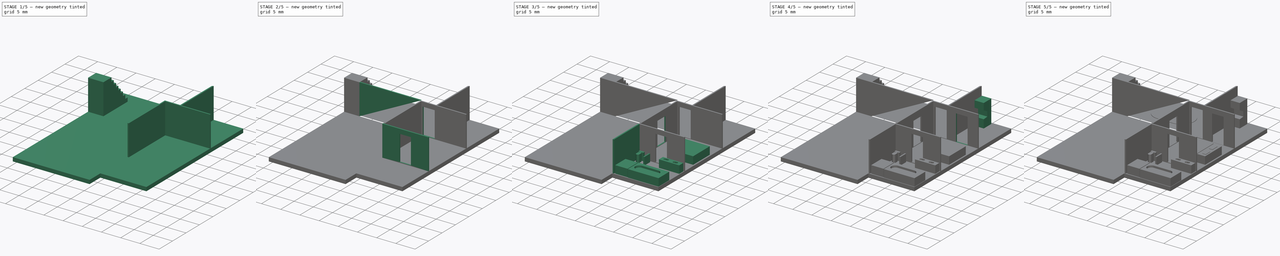
[diagram: build sequence overview — one tinted view per stage of 5, left to right]
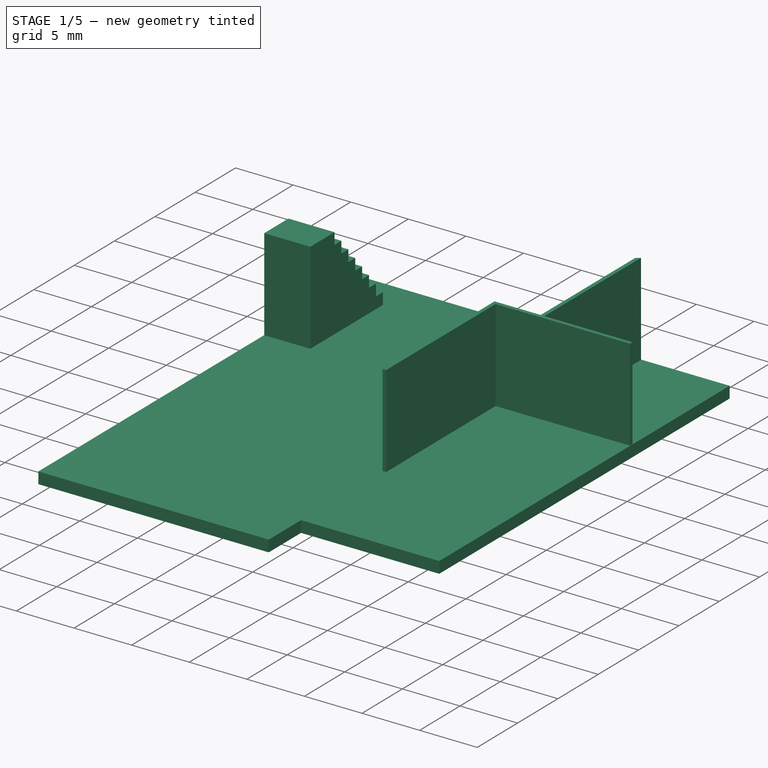
[diagram: stage 1 of 5 — iso view after this stage's code; geometry added in this stage tinted green]
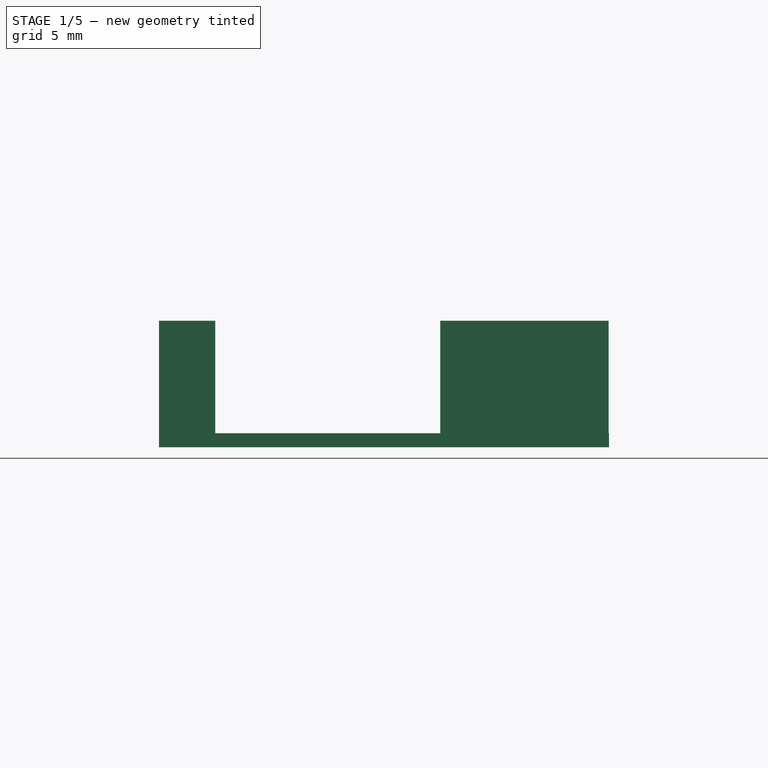
[diagram: stage 1 of 5 — front view after this stage's code; geometry added in this stage tinted green]
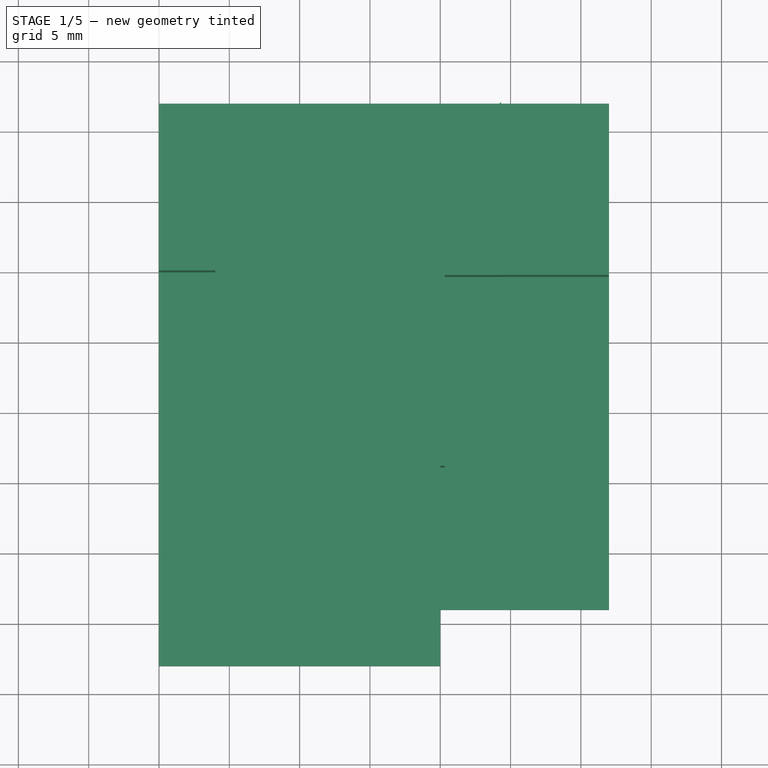
[diagram: stage 1 of 5 — top view after this stage's code; geometry added in this stage tinted green]
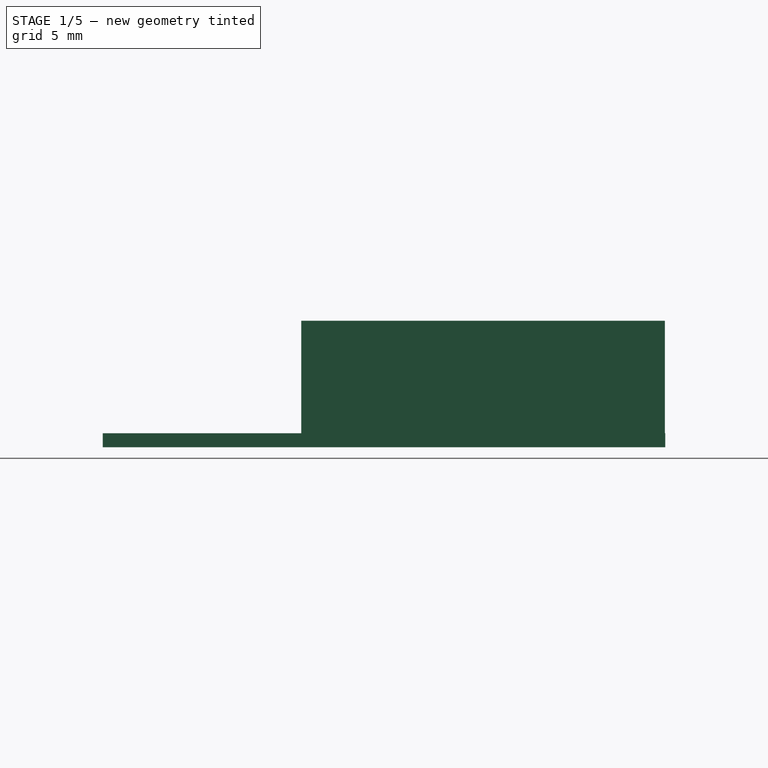
[diagram: stage 1 of 5 — right view after this stage's code; geometry added in this stage tinted green]
FCSTD DOCUMENT  (FreeCAD 0.19R)
Label: Addition1b
License: All rights reserved
LicenseURL: http://en.wikipedia.org/wiki/All_rights_reserved
objects: Sketcher::SketchObject×27, PartDesign::Pad×14, PartDesign::Pocket×7, PartDesign::Body×1
note: 70 computed .brp shape members not serialized (recipe doc carries the construction recipe); baked Part::Feature solids carry a one-line shape summary decoded from their .brp

FEATURE [Sketcher::SketchObject] Sketch
  FullyConstrained = true
  MapMode = 5
  Support = -> [XY_Plane]
  sketch-geometry (8):
    g0: LineSegment StartX=0 StartY=-28 StartZ=0 EndX=-20 EndY=-28 EndZ=0
    g1: LineSegment StartX=-20 StartY=-28 StartZ=0 EndX=-20 EndY=0 EndZ=0
    g2: LineSegment StartX=-20 StartY=0 StartZ=0 EndX=-16 EndY=0 EndZ=0
    g3: LineSegment StartX=-16 StartY=0 StartZ=0 EndX=-16 EndY=12 EndZ=0
    g4: LineSegment StartX=-16 StartY=12 StartZ=0 EndX=12 EndY=12 EndZ=0
    g5: LineSegment StartX=12 StartY=12 StartZ=0 EndX=12 EndY=-24 EndZ=0
    g6: LineSegment StartX=12 StartY=-24 StartZ=0 EndX=0 EndY=-24 EndZ=0
    g7: LineSegment StartX=0 StartY=-24 StartZ=0 EndX=0 EndY=-28 EndZ=0
  constraints (24):
    c: Coincident(g0,g1)
    c: Horizontal(g0)
    c: Vertical(g1)
    c: DistanceX(g1) = -20
    c: DistanceY(g0) = -28
    c: Coincident(g1,g2)
    c: PointOnObject(g2,g-1)
    c: Horizontal(g2)
    c: Coincident(g2,g3)
    c: Vertical(g3)
    c: Coincident(g3,g4)
    c: Horizontal(g4)
    c: Coincident(g4,g5)
    c: Vertical(g5)
    c: Coincident(g5,g6)
    c: PointOnObject(g6,g-2)
    c: Coincident(g6,g7)
    c: Coincident(g7,g0)
    c: Vertical(g7)
    c: Horizontal(g6)
    c: Distance(g6) = 12
    c: Distance(g3) = 12
    c: DistanceY(g6) = -24
    c: DistanceX(g2) = -16
FEATURE [PartDesign::Pad] Pad  label="foundation"
  Direction = (1,1,1)
  Length = 1
  Length2 = 100
  Profile = -> Sketch
  Type = 0
FEATURE [Sketcher::SketchObject] Sketch004
  FullyConstrained = true
  MapMode = 5
  Placement = pos=(-16,0,0) rot=(0.57735,-0.57735,-0.57735;2.0944rad)
  Support = -> [Pad]
  sketch-geometry (20):
    g0: LineSegment StartX=-12 StartY=0 StartZ=0 EndX=-12 EndY=1 EndZ=0
    g1: LineSegment StartX=-12 StartY=1 StartZ=0 EndX=-9 EndY=1 EndZ=0
    g2: LineSegment StartX=-9 StartY=1 StartZ=0 EndX=-9 EndY=2 EndZ=0
    g3: LineSegment StartX=-9 StartY=2 StartZ=0 EndX=-8.14286 EndY=2 EndZ=0
    g4: LineSegment StartX=-8.14286 StartY=2 StartZ=0 EndX=-8.14286 EndY=3 EndZ=0
    g5: LineSegment StartX=-8.14286 StartY=3 StartZ=0 EndX=-7.28571 EndY=3 EndZ=0
    g6: LineSegment StartX=-7.28571 StartY=3 StartZ=0 EndX=-7.28571 EndY=4 EndZ=0
    g7: LineSegment StartX=-7.28571 StartY=4 StartZ=0 EndX=-6.42857 EndY=4 EndZ=0
    g8: LineSegment StartX=-6.42857 StartY=4 StartZ=0 EndX=-6.42857 EndY=5 EndZ=0
    g9: LineSegment StartX=-6.42857 StartY=5 StartZ=0 EndX=-5.57143 EndY=5 EndZ=0
    g10: LineSegment StartX=-5.57143 StartY=5 StartZ=0 EndX=-5.57143 EndY=6 EndZ=0
    g11: LineSegment StartX=-5.57143 StartY=6 StartZ=0 EndX=-4.71429 EndY=6 EndZ=0
    g12: LineSegment StartX=-4.71429 StartY=6 StartZ=0 EndX=-4.71429 EndY=7 EndZ=0
    g13: LineSegment StartX=-4.71429 StartY=7 StartZ=0 EndX=-3.85714 EndY=7 EndZ=0
    g14: LineSegment StartX=-3.85714 StartY=7 StartZ=0 EndX=-3.85714 EndY=8 EndZ=0
    g15: LineSegment StartX=-3.85714 StartY=8 StartZ=0 EndX=-3 EndY=8 EndZ=0
    g16: LineSegment StartX=-3 StartY=8 StartZ=0 EndX=-3 EndY=9 EndZ=0
    g17: LineSegment StartX=-3 StartY=9 StartZ=0 EndX=0 EndY=9 EndZ=0
    g18: LineSegment StartX=0 StartY=9 StartZ=0 EndX=0 EndY=0 EndZ=0
    g19: LineSegment StartX=0 StartY=0 StartZ=0 EndX=-12 EndY=0 EndZ=0
  constraints (59):
    c: PointOnObject(g0,g-1)
    c: Coincident(g0,g1)
    c: Coincident(g1,g2)
    c: Coincident(g2,g3)
    c: Coincident(g3,g4)
    c: Vertical(g4)
    c: Coincident(g4,g5)
    c: Horizontal(g5)
    c: Coincident(g5,g6)
    c: Coincident(g6,g7)
    c: Coincident(g7,g8)
    c: Coincident(g8,g9)
    c: Coincident(g9,g10)
    c: Coincident(g10,g11)
    c: Horizontal(g11)
    c: Coincident(g11,g12)
    c: Coincident(g12,g13)
    c: Coincident(g13,g14)
    c: Coincident(g14,g15)
    c: Coincident(g15,g16)
    c: Coincident(g16,g17)
    c: PointOnObject(g17,g-2)
    c: Coincident(g17,g18)
    c: Coincident(g18,g-1)
    c: Coincident(g18,g19)
    c: Coincident(g19,g0)
    c: DistanceY(g17) = 9
    c: Horizontal(g3)
    c: Horizontal(g7)
    c: Horizontal(g9)
    c: Horizontal(g13)
    c: Horizontal(g15)
    c: Vertical(g6)
    c: Vertical(g8)
    c: Vertical(g12)
    c: Vertical(g10)
    c: Vertical(g14)
    c: Vertical(g16)
    c: Vertical(g2)
    c: Equal(g2,g4)
    c: Equal(g4,g6)
    c: Equal(g6,g8)
    c: Equal(g8,g10)
    c: Equal(g10,g12)
    c: Equal(g12,g14)
    c: Equal(g14,g16)
    c: Distance(g17) = 3
    c: Equal(g3,g5)
    c: Equal(g5,g7)
    c: Equal(g7,g9)
    c: Equal(g9,g11)
    c: Equal(g11,g13)
    c: Equal(g13,g15)
    c: Horizontal(g1)
    c: Horizontal(g17)
    c: Distance(g1) = 3
    c: Vertical(g0)
    c: Distance(g0) = 1
    c: DistanceX(g0) = -12
FEATURE [Sketcher::SketchObject] Sketch007
  FullyConstrained = false
  MapMode = 5
  Placement = pos=(0,0,1) rot=(0,0,1;0rad)
  sketch-geometry (8):
    g0: LineSegment StartX=0.316723 StartY=-0.33 StartZ=0 EndX=0.316723 EndY=-13.8883 EndZ=0
    g1: LineSegment StartX=0.316723 StartY=-13.8883 StartZ=0 EndX=0 EndY=-13.8883 EndZ=0
    g2: LineSegment StartX=0 StartY=-13.8883 StartZ=0 EndX=0 EndY=0 EndZ=0
    g3: LineSegment StartX=0.316723 StartY=-0.33 StartZ=0 EndX=4.33 EndY=-0.33 EndZ=0
    g4: LineSegment StartX=4.33 StartY=-0.33 StartZ=0 EndX=4.33 EndY=11.9692 EndZ=0
    g5: LineSegment StartX=4.33 StartY=11.9692 StartZ=0 EndX=4 EndY=11.7324 EndZ=0
    g6: LineSegment StartX=4 StartY=11.7324 StartZ=0 EndX=4 EndY=0 EndZ=0
    g7: LineSegment StartX=4 StartY=0 StartZ=0 EndX=0 EndY=0 EndZ=0
  constraints (19):
    c: Coincident(g0,g1)
    c: Coincident(g1,g2)
    c: Horizontal(g1)
    c: Vertical(g0)
    c: Vertical(g2)
    c: Coincident(g0,g3)
    c: Horizontal(g3)
    c: Coincident(g3,g4)
    c: Vertical(g4)
    c: Coincident(g4,g5)
    c: Coincident(g5,g6)
    c: Vertical(g6)
    c: Coincident(g6,g7)
    c: Coincident(g7,g2)
    c: Horizontal(g7)
    c: Distance(g0,g7) = 0.33
    c: Coincident(g-1,g2)
    c: Distance(g7) = 4
    c: DistanceX(g6,g3) = 0.33
FEATURE [PartDesign::Pad] Pad004  label="wall"
  BaseFeature = -> Pad
  Direction = (1,1,1)
  Length = 8
  Length2 = 100
  Profile = -> Sketch007
  Type = 0
FEATURE [Sketcher::SketchObject] Sketch012
  FullyConstrained = true
  MapMode = 5
  Placement = pos=(0,0,0) rot=(1,0,0;3.14159rad)
FEATURE [Sketcher::SketchObject] Sketch013
  FullyConstrained = true
  MapMode = 5
  Placement = pos=(0,0,0) rot=(1,0,0;3.14159rad)
FEATURE [PartDesign::Pad] Pad005  label="stairs001"
  BaseFeature = -> Pad004
  Direction = (1,1,1)
  Length = 4
  Length2 = 100
  Profile = -> Sketch004
  Type = 0
FEATURE [Sketcher::SketchObject] Sketch014
  FullyConstrained = false
  MapMode = 5
  Placement = pos=(0,0,1) rot=(0,0,1;0rad)
  Support = -> [Pad005]
  sketch-geometry (4):
    g0: LineSegment StartX=4.2418 StartY=0 StartZ=0 EndX=4.2418 EndY=-0.31886 EndZ=0
    g1: LineSegment StartX=4.2418 StartY=-0.31886 StartZ=0 EndX=11.971 EndY=-0.31886 EndZ=0
    g2: LineSegment StartX=11.971 StartY=-0.31886 StartZ=0 EndX=11.971 EndY=0 EndZ=0
    g3: LineSegment StartX=11.971 StartY=0 StartZ=0 EndX=4.2418 EndY=0 EndZ=0
  constraints (9):
    c: PointOnObject(g0,g-1)
    c: Coincident(g0,g1)
    c: Horizontal(g1)
    c: Coincident(g1,g2)
    c: PointOnObject(g2,g-1)
    c: Coincident(g2,g3)
    c: Coincident(g3,g0)
    c: Vertical(g0)
    c: Vertical(g2)
FEATURE [PartDesign::Pad] Pad006  label="closetwall"
  BaseFeature = -> Pad005
  Direction = (1,1,1)
  Length = 8
  Length2 = 100
  Profile = -> Sketch014
  Type = 0
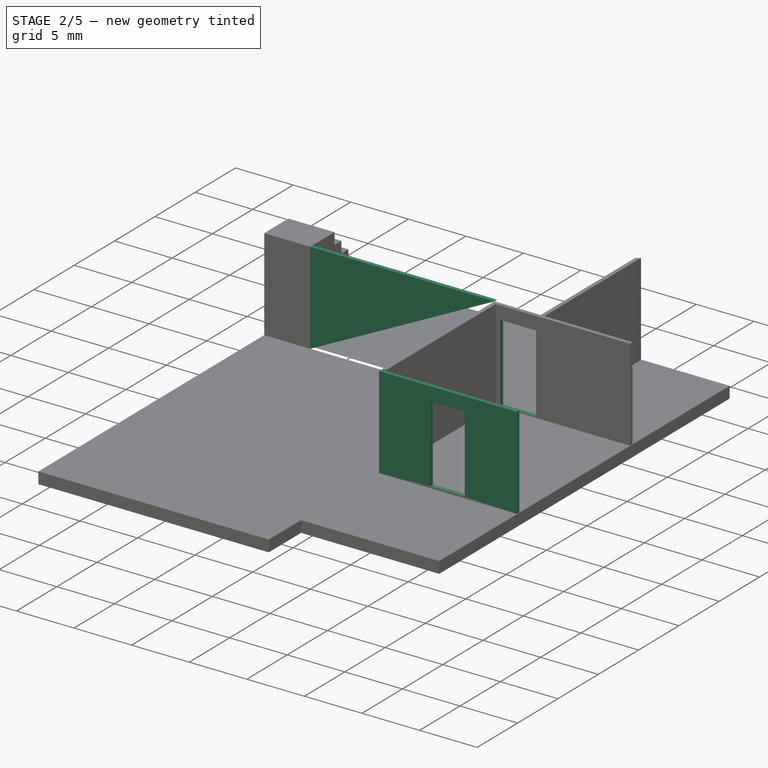
[diagram: stage 2 of 5 — iso view after this stage's code; geometry added in this stage tinted green]
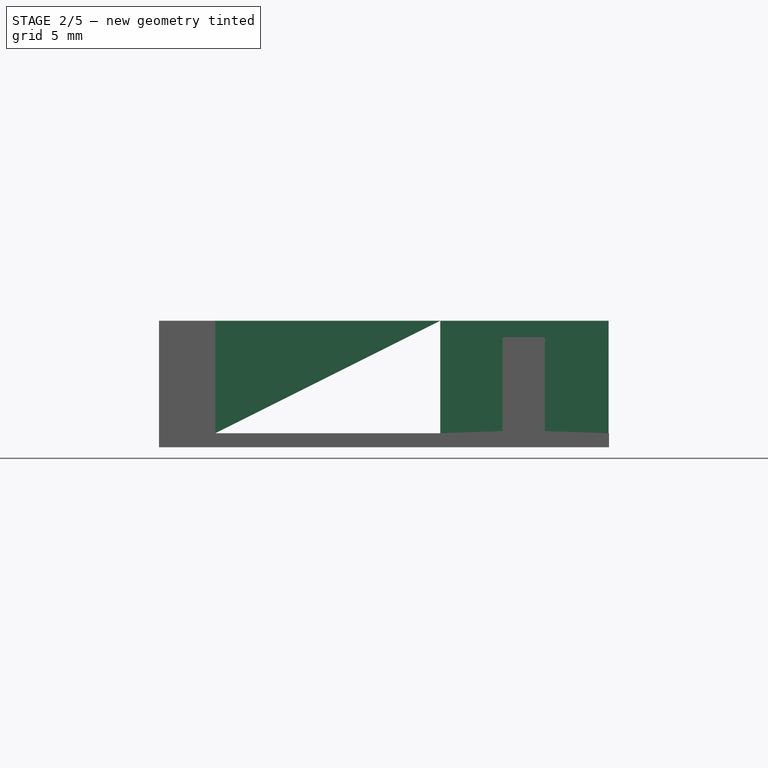
[diagram: stage 2 of 5 — front view after this stage's code; geometry added in this stage tinted green]
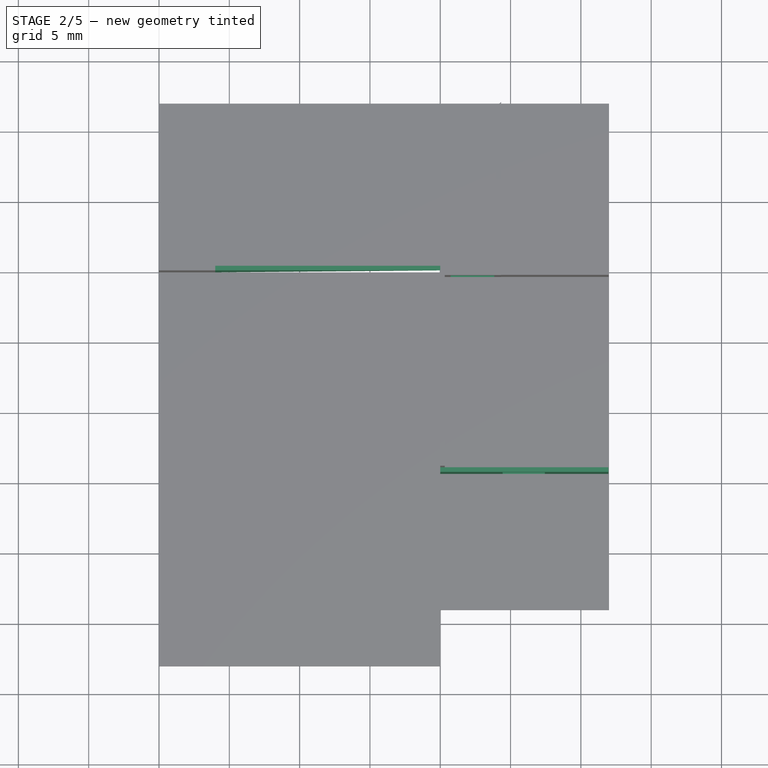
[diagram: stage 2 of 5 — top view after this stage's code; geometry added in this stage tinted green]
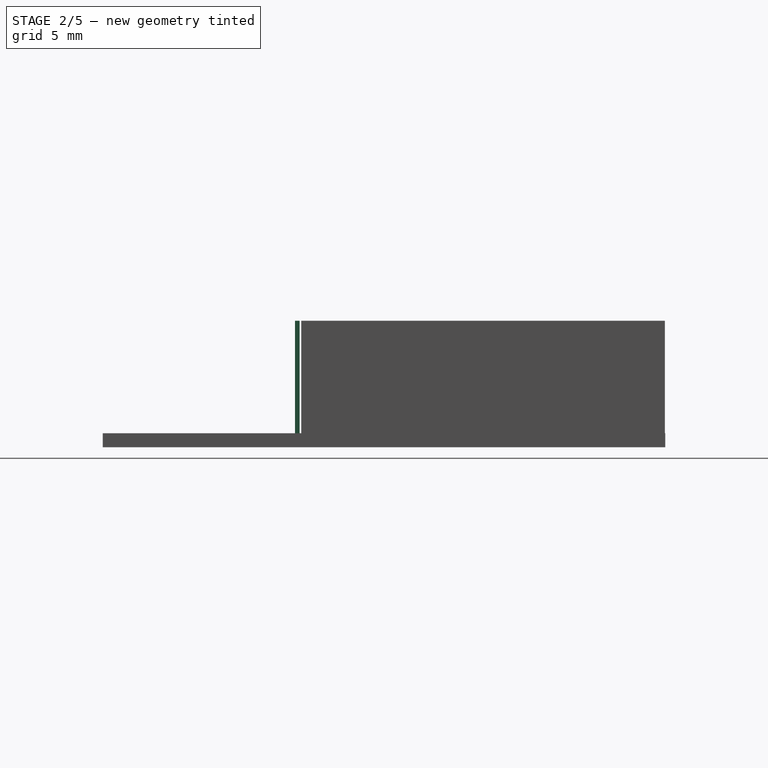
[diagram: stage 2 of 5 — right view after this stage's code; geometry added in this stage tinted green]
FEATURE [Sketcher::SketchObject] Sketch015
  FullyConstrained = false
  MapMode = 5
  Placement = pos=(0,0,1) rot=(0,0,1;0rad)
  Support = -> [Pad006]
  sketch-geometry (4):
    g0: LineSegment StartX=0 StartY=-14 StartZ=0 EndX=11.9531 EndY=-14 EndZ=0
    g1: LineSegment StartX=11.9531 StartY=-14 StartZ=0 EndX=11.9531 EndY=-14.33 EndZ=0
    g2: LineSegment StartX=11.9531 StartY=-14.33 StartZ=0 EndX=0 EndY=-14.33 EndZ=0
    g3: LineSegment StartX=0 StartY=-14.33 StartZ=0 EndX=0 EndY=-14 EndZ=0
  constraints (11):
    c: Coincident(g0,g1)
    c: Coincident(g1,g2)
    c: Coincident(g2,g3)
    c: Coincident(g3,g0)
    c: Horizontal(g0)
    c: Horizontal(g2)
    c: Vertical(g1)
    c: Vertical(g3)
    c: PointOnObject(g0,g-2)
    c: DistanceY(g0) = -14
    c: Distance(g1) = 0.33
FEATURE [PartDesign::Pad] Pad007  label="BRwall"
  BaseFeature = -> Pad006
  Direction = (1,1,1)
  Length = 8
  Length2 = 100
  Profile = -> Sketch015
  Type = 0
FEATURE [Sketcher::SketchObject] Sketch016
  FullyConstrained = false
  MapMode = 5
  Placement = pos=(0,-14.33,0) rot=(1,0,0;1.5708rad)
  Support = -> [Pad007]
  sketch-geometry (4):
    g0: LineSegment StartX=4.4393 StartY=7.82713 StartZ=0 EndX=7.4393 EndY=7.82713 EndZ=0
    g1: LineSegment StartX=7.4393 StartY=7.82713 StartZ=0 EndX=7.4393 EndY=1.1546 EndZ=0
    g2: LineSegment StartX=7.4393 StartY=1.1546 StartZ=0 EndX=4.4393 EndY=1.1546 EndZ=0
    g3: LineSegment StartX=4.4393 StartY=1.1546 StartZ=0 EndX=4.4393 EndY=7.82713 EndZ=0
  constraints (9):
    c: Coincident(g0,g1)
    c: Coincident(g1,g2)
    c: Coincident(g2,g3)
    c: Coincident(g3,g0)
    c: Horizontal(g0)
    c: Horizontal(g2)
    c: Vertical(g1)
    c: Vertical(g3)
    c: Distance(g0) = 3
FEATURE [PartDesign::Pocket] Pocket  label="BathDoor"
  BaseFeature = -> Pad007
  Length = 5
  Length2 = 100
  Profile = -> Sketch016
  Type = 0
FEATURE [Sketcher::SketchObject] Sketch017
  FullyConstrained = false
  MapMode = 5
  Placement = pos=(0,-0.33,0) rot=(1,0,0;1.5708rad)
  Support = -> [Pocket]
  sketch-geometry (4):
    g0: LineSegment StartX=0.733771 StartY=7.85932 StartZ=0 EndX=3.83597 EndY=7.85932 EndZ=0
    g1: LineSegment StartX=3.83597 StartY=7.85932 StartZ=0 EndX=3.83597 EndY=1.10284 EndZ=0
    g2: LineSegment StartX=3.83597 StartY=1.10284 StartZ=0 EndX=0.733771 EndY=1.10284 EndZ=0
    g3: LineSegment StartX=0.733771 StartY=1.10284 StartZ=0 EndX=0.733771 EndY=7.85932 EndZ=0
  constraints (8):
    c: Coincident(g0,g1)
    c: Coincident(g1,g2)
    c: Coincident(g2,g3)
    c: Coincident(g3,g0)
    c: Horizontal(g0)
    c: Horizontal(g2)
    c: Vertical(g1)
    c: Vertical(g3)
FEATURE [PartDesign::Pocket] Pocket001  label="KitDoor"
  BaseFeature = -> Pocket
  Length = 5
  Length2 = 100
  Profile = -> Sketch017
  Type = 0
FEATURE [Sketcher::SketchObject] Sketch018
  FullyConstrained = false
  MapMode = 5
  Placement = pos=(0,0,1) rot=(0,0,1;0rad)
  Support = -> [Pocket001]
  sketch-geometry (4):
    g0: LineSegment StartX=0 StartY=0 StartZ=0 EndX=-15.9993 EndY=0 EndZ=0
    g1: LineSegment StartX=-15.9993 StartY=0 StartZ=0 EndX=-15.9993 EndY=0.33 EndZ=0
    g2: LineSegment StartX=-15.9993 StartY=0.33 StartZ=0 EndX=0 EndY=0.33 EndZ=0
    g3: LineSegment StartX=0 StartY=0.33 StartZ=0 EndX=0 EndY=0 EndZ=0
  constraints (10):
    c: Coincident(g-1,g0)
    c: PointOnObject(g0,g-1)
    c: Coincident(g0,g1)
    c: Coincident(g1,g2)
    c: Horizontal(g2)
    c: Coincident(g2,g3)
    c: Coincident(g3,g0)
    c: Vertical(g3)
    c: Distance(g3) = 0.33
    c: Vertical(g1)
FEATURE [PartDesign::Pad] Pad008  label="HouseWall"
  BaseFeature = -> Pocket001
  Direction = (1,1,1)
  Length = 8
  Length2 = 100
  Profile = -> Sketch018
  Type = 0
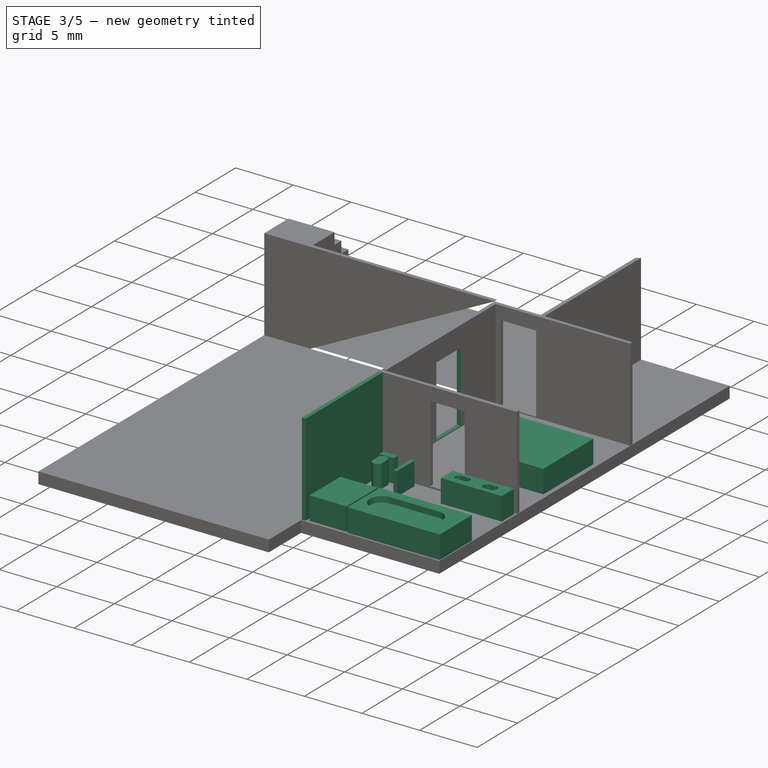
[diagram: stage 3 of 5 — iso view after this stage's code; geometry added in this stage tinted green]
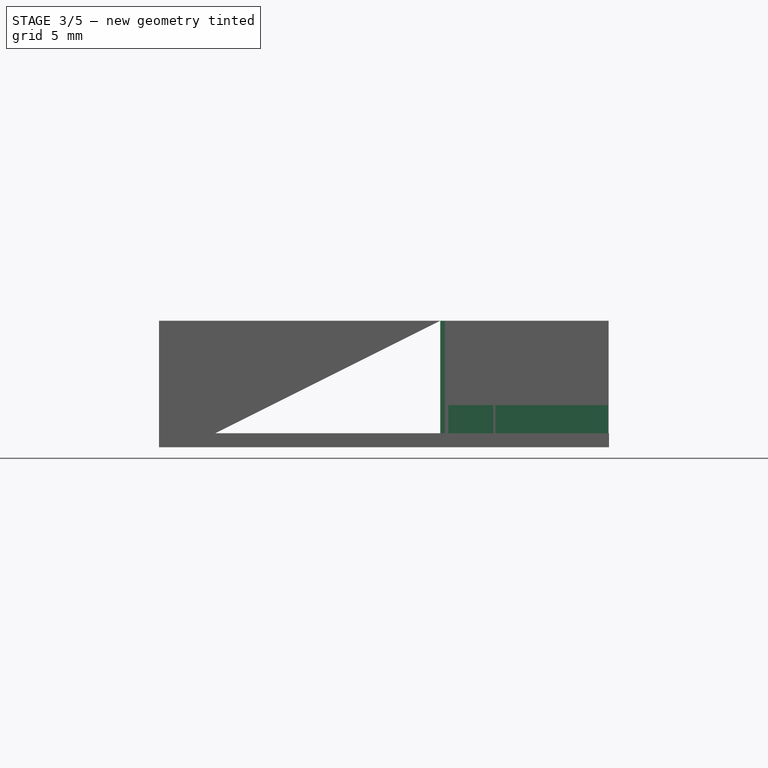
[diagram: stage 3 of 5 — front view after this stage's code; geometry added in this stage tinted green]
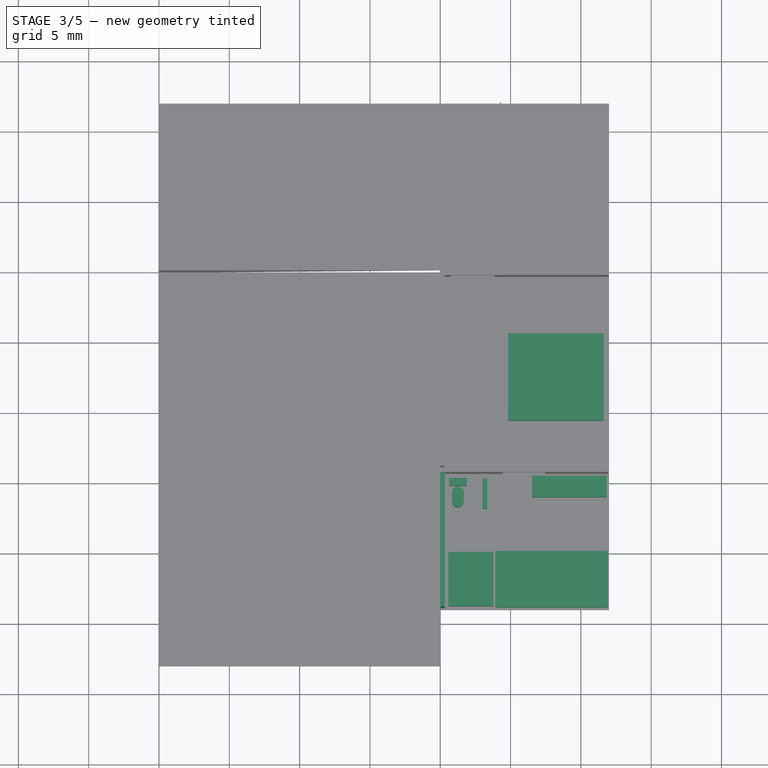
[diagram: stage 3 of 5 — top view after this stage's code; geometry added in this stage tinted green]
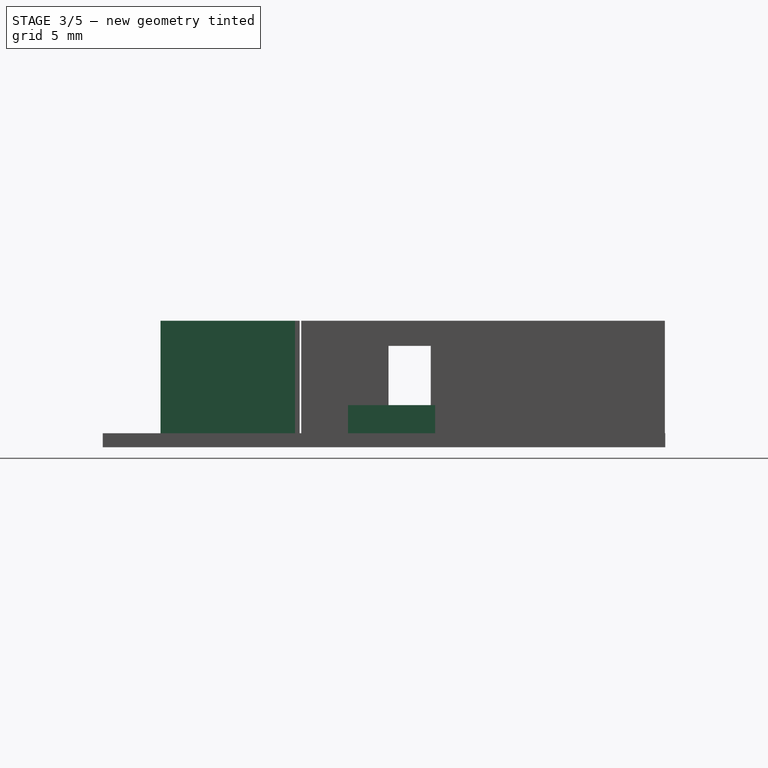
[diagram: stage 3 of 5 — right view after this stage's code; geometry added in this stage tinted green]
FEATURE [Sketcher::SketchObject] Sketch019
  FullyConstrained = false
  MapMode = 5
  Placement = pos=(0,0,0) rot=(1,0,0;1.5708rad)
  Support = -> [Pad008]
  sketch-geometry (4):
    g0: LineSegment StartX=-9.86493 StartY=6.37394 StartZ=0 EndX=-6.46122 EndY=6.37394 EndZ=0
    g1: LineSegment StartX=-6.46122 StartY=6.37394 StartZ=0 EndX=-6.46122 EndY=1.07571 EndZ=0
    g2: LineSegment StartX=-6.46122 StartY=1.07571 StartZ=0 EndX=-9.86493 EndY=1.07571 EndZ=0
    g3: LineSegment StartX=-9.86493 StartY=1.07571 StartZ=0 EndX=-9.86493 EndY=6.37394 EndZ=0
  constraints (8):
    c: Coincident(g0,g1)
    c: Coincident(g1,g2)
    c: Coincident(g2,g3)
    c: Coincident(g3,g0)
    c: Horizontal(g0)
    c: Horizontal(g2)
    c: Vertical(g1)
    c: Vertical(g3)
FEATURE [Sketcher::SketchObject] Sketch020
  FullyConstrained = false
  MapMode = 5
  Placement = pos=(0,0,0) rot=(0.57735,-0.57735,-0.57735;2.0944rad)
  Support = -> [Pad008]
  sketch-geometry (4):
    g0: LineSegment StartX=4.67696 StartY=7.21448 StartZ=0 EndX=7.67696 EndY=7.21448 EndZ=0
    g1: LineSegment StartX=7.67696 StartY=7.21448 StartZ=0 EndX=7.67696 EndY=1.11349 EndZ=0
    g2: LineSegment StartX=7.67696 StartY=1.11349 StartZ=0 EndX=4.67696 EndY=1.11349 EndZ=0
    g3: LineSegment StartX=4.67696 StartY=1.11349 StartZ=0 EndX=4.67696 EndY=7.21448 EndZ=0
  constraints (9):
    c: Coincident(g0,g1)
    c: Coincident(g1,g2)
    c: Coincident(g2,g3)
    c: Coincident(g3,g0)
    c: Horizontal(g0)
    c: Horizontal(g2)
    c: Vertical(g1)
    c: Vertical(g3)
    c: Distance(g0) = 3
FEATURE [PartDesign::Pocket] Pocket002
  BaseFeature = -> Pad008
  Length = 5
  Length2 = 100
  Profile = -> Sketch020
  Type = 0
FEATURE [Sketcher::SketchObject] Sketch021
  FullyConstrained = false
  MapMode = 5
  Placement = pos=(0,0,1) rot=(0,0,1;0rad)
  Support = -> [Pocket002]
  sketch-geometry (4):
    g0: LineSegment StartX=0 StartY=-14.2635 StartZ=0 EndX=0 EndY=-23.8941 EndZ=0
    g1: LineSegment StartX=0 StartY=-23.8941 StartZ=0 EndX=0.33 EndY=-23.8726 EndZ=0
    g2: LineSegment StartX=0.33 StartY=-23.8726 StartZ=0 EndX=0.33 EndY=-14.2635 EndZ=0
    g3: LineSegment StartX=0.33 StartY=-14.2635 StartZ=0 EndX=0 EndY=-14.2635 EndZ=0
  constraints (9):
    c: PointOnObject(g0,g-2)
    c: PointOnObject(g0,g-2)
    c: Coincident(g0,g1)
    c: Coincident(g1,g2)
    c: Vertical(g2)
    c: Coincident(g2,g3)
    c: Coincident(g3,g0)
    c: Horizontal(g3)
    c: Distance(g3) = 0.33
FEATURE [PartDesign::Pad] Pad009  label="BRleftwall"
  BaseFeature = -> Pocket002
  Direction = (1,1,1)
  Length = 8
  Length2 = 100
  Profile = -> Sketch021
  Type = 0
FEATURE [Sketcher::SketchObject] Sketch005
  FullyConstrained = false
  MapMode = 5
  Placement = pos=(0,0,1) rot=(0,0,1;0rad)
  Support = -> [Pad009]
  sketch-geometry (24):
    g0: LineSegment StartX=6.53413 StartY=-14.5109 StartZ=0 EndX=11.8296 EndY=-14.5109 EndZ=0
    g1: LineSegment StartX=11.8296 StartY=-14.5109 StartZ=0 EndX=11.8296 EndY=-16.0109 EndZ=0
    g2: LineSegment StartX=11.8296 StartY=-16.0109 StartZ=0 EndX=6.53413 EndY=-16.0109 EndZ=0
    g3: LineSegment StartX=6.53413 StartY=-16.0109 StartZ=0 EndX=6.53413 EndY=-14.5109 EndZ=0
    g4: LineSegment StartX=3.92264 StartY=-19.8444 StartZ=0 EndX=11.9226 EndY=-19.8444 EndZ=0
    g5: LineSegment StartX=11.9226 StartY=-19.8444 StartZ=0 EndX=11.9226 EndY=-23.8444 EndZ=0
    g6: LineSegment StartX=11.9226 StartY=-23.8444 StartZ=0 EndX=3.92264 EndY=-23.8444 EndZ=0
    g7: LineSegment StartX=3.92264 StartY=-23.8444 StartZ=0 EndX=3.92264 EndY=-19.8444 EndZ=0
    g8: LineSegment StartX=0.566351 StartY=-19.9158 StartZ=0 EndX=3.77896 EndY=-19.9158 EndZ=0
    g9: LineSegment StartX=3.77896 StartY=-19.9158 StartZ=0 EndX=3.77896 EndY=-23.7541 EndZ=0
    g10: LineSegment StartX=3.77896 StartY=-23.7541 StartZ=0 EndX=0.566351 EndY=-23.7541 EndZ=0
    g11: LineSegment StartX=0.566351 StartY=-23.7541 StartZ=0 EndX=0.566351 EndY=-19.9158 EndZ=0
    g12: ArcOfCircle CenterX=1.25513 CenterY=-15.6831 CenterZ=0 NormalX=0 NormalY=0 NormalZ=1 AngleXU=0 Radius=0.420638 StartAngle=0 EndAngle=3.14159
    g13: ArcOfCircle CenterX=1.25513 CenterY=-16.3141 CenterZ=0 NormalX=0 NormalY=0 NormalZ=1 AngleXU=0 Radius=0.420638 StartAngle=3.14159 EndAngle=6.28319
    g14: LineSegment StartX=0.834494 StartY=-15.6831 StartZ=0 EndX=0.834494 EndY=-16.3141 EndZ=0
    g15: LineSegment StartX=1.67577 StartY=-15.6831 StartZ=0 EndX=1.67577 EndY=-16.3141 EndZ=0
    g16: LineSegment StartX=0.621589 StartY=-14.6605 StartZ=0 EndX=1.88875 EndY=-14.6605 EndZ=0
    g17: LineSegment StartX=1.88875 StartY=-14.6605 StartZ=0 EndX=1.88875 EndY=-15.2011 EndZ=0
    g18: LineSegment StartX=1.88875 StartY=-15.2011 StartZ=0 EndX=0.621589 EndY=-15.2011 EndZ=0
    g19: LineSegment StartX=0.621589 StartY=-15.2011 StartZ=0 EndX=0.621589 EndY=-14.6605 EndZ=0
    g20: LineSegment StartX=3.33 StartY=-14.7023 StartZ=0 EndX=3.33 EndY=-16.8223 EndZ=0
    g21: LineSegment StartX=3.33 StartY=-16.8223 StartZ=0 EndX=3 EndY=-16.8223 EndZ=0
    g22: LineSegment StartX=3 StartY=-16.8223 StartZ=0 EndX=3 EndY=-14.7023 EndZ=0
    g23: LineSegment StartX=3 StartY=-14.7023 StartZ=0 EndX=3.33 EndY=-14.7023 EndZ=0
  constraints (49):
    c: Coincident(g0,g1)
    c: Coincident(g1,g2)
    c: Coincident(g2,g3)
    c: Coincident(g3,g0)
    c: Horizontal(g0)
    c: Horizontal(g2)
    c: Vertical(g1)
    c: Vertical(g3)
    c: Coincident(g4,g5)
    c: Coincident(g5,g6)
    c: Coincident(g6,g7)
    c: Coincident(g7,g4)
    c: Horizontal(g4)
    c: Horizontal(g6)
    c: Vertical(g5)
    c: Vertical(g7)
    c: Coincident(g8,g9)
    c: Coincident(g9,g10)
    c: Coincident(g10,g11)
    c: Coincident(g11,g8)
    c: Horizontal(g8)
    c: Horizontal(g10)
    c: Vertical(g9)
    c: Vertical(g11)
    c: Tangent(g12,g15) = 1.5708
    c: Tangent(g12,g14) = -1.5708
    c: Tangent(g14,g13) = -1.5708
    c: Tangent(g15,g13) = 1.5708
    c: Vertical(g14)
    c: Equal(g12,g13)
    c: Coincident(g16,g17)
    c: Coincident(g17,g18)
    c: Coincident(g18,g19)
    c: Coincident(g19,g16)
    c: Horizontal(g16)
    c: Horizontal(g18)
    c: Vertical(g17)
    c: Vertical(g19)
    c: Distance(g4) = 8
    c: Distance(g5) = 4
    c: Distance(g1) = 1.5
    c: Vertical(g20)
    c: Coincident(g20,g21)
    c: Coincident(g21,g22)
    c: Vertical(g22)
    c: Distance(g21) = 0.33
    c: Horizontal(g21)
    c: Coincident(g23,g22)
    c: Coincident(g23,g20)
FEATURE [Sketcher::SketchObject] Sketch022
  FullyConstrained = true
  MapMode = 5
  Placement = pos=(0,0,3) rot=(0,0,1;0rad)
FEATURE [Sketcher::SketchObject] Sketch023
  FullyConstrained = true
  MapMode = 5
  Placement = pos=(0,0,0) rot=(1,0,0;3.14159rad)
FEATURE [PartDesign::Pad] Pad010  label="Bathfixtures"
  BaseFeature = -> Pad009
  Direction = (1,1,1)
  Length = 2
  Length2 = 100
  Profile = -> Sketch005
  Type = 0
FEATURE [Sketcher::SketchObject] Sketch010
  FullyConstrained = false
  MapMode = 5
  Placement = pos=(0,0,3) rot=(0,0,1;0rad)
  Support = -> [Pad010]
  sketch-geometry (12):
    g0: ArcOfCircle CenterX=5.45251 CenterY=-21.7611 CenterZ=0 NormalX=0 NormalY=0 NormalZ=1 AngleXU=0 Radius=1.05172 StartAngle=1.5708 EndAngle=4.71239
    g1: ArcOfCircle CenterX=9.65426 CenterY=-21.7611 CenterZ=0 NormalX=0 NormalY=0 NormalZ=1 AngleXU=0 Radius=1.05172 StartAngle=4.71239 EndAngle=7.85398
    g2: LineSegment StartX=5.45251 StartY=-22.8129 StartZ=0 EndX=9.65426 EndY=-22.8129 EndZ=0
    g3: LineSegment StartX=5.45251 StartY=-20.7094 StartZ=0 EndX=9.65426 EndY=-20.7094 EndZ=0
    g4: ArcOfCircle CenterX=7.50758 CenterY=-15.1615 CenterZ=0 NormalX=0 NormalY=0 NormalZ=1 AngleXU=0 Radius=0.308323 StartAngle=1.5708 EndAngle=4.71239
    g5: ArcOfCircle CenterX=8.17393 CenterY=-15.1615 CenterZ=0 NormalX=0 NormalY=0 NormalZ=1 AngleXU=0 Radius=0.308323 StartAngle=4.71239 EndAngle=7.85398
    g6: LineSegment StartX=7.50758 StartY=-15.4699 StartZ=0 EndX=8.17393 EndY=-15.4699 EndZ=0
    g7: LineSegment StartX=7.50758 StartY=-14.8532 StartZ=0 EndX=8.17393 EndY=-14.8532 EndZ=0
    g8: ArcOfCircle CenterX=10.0443 CenterY=-15.2584 CenterZ=0 NormalX=0 NormalY=0 NormalZ=1 AngleXU=0 Radius=0.355005 StartAngle=1.5708 EndAngle=4.71239
    g9: ArcOfCircle CenterX=10.553 CenterY=-15.2584 CenterZ=0 NormalX=0 NormalY=0 NormalZ=1 AngleXU=0 Radius=0.355005 StartAngle=4.71239 EndAngle=7.85398
    g10: LineSegment StartX=10.0443 StartY=-15.6134 StartZ=0 EndX=10.553 EndY=-15.6134 EndZ=0
    g11: LineSegment StartX=10.0443 StartY=-14.9034 StartZ=0 EndX=10.553 EndY=-14.9034 EndZ=0
  constraints (18):
    c: Tangent(g0,g3) = 1.5708
    c: Tangent(g0,g2) = -1.5708
    c: Tangent(g2,g1) = -1.5708
    c: Tangent(g3,g1) = 1.5708
    c: Horizontal(g2)
    c: Equal(g0,g1)
    c: Tangent(g4,g7) = 1.5708
    c: Tangent(g4,g6) = -1.5708
    c: Tangent(g6,g5) = -1.5708
    c: Tangent(g7,g5) = 1.5708
    c: Horizontal(g6)
    c: Equal(g4,g5)
    c: Tangent(g8,g11) = 1.5708
    c: Tangent(g8,g10) = -1.5708
    c: Tangent(g10,g9) = -1.5708
    c: Tangent(g11,g9) = 1.5708
    c: Horizontal(g10)
    c: Equal(g8,g9)
FEATURE [PartDesign::Pocket] Pocket003  label="sinces"
  BaseFeature = -> Pad010
  Length = 0.5
  Length2 = 100
  Profile = -> Sketch010
  Type = 0
FEATURE [Sketcher::SketchObject] Sketch024
  FullyConstrained = false
  MapMode = 5
  Placement = pos=(0,0,1) rot=(0,0,1;0rad)
  Support = -> [Pocket003]
  sketch-geometry (4):
    g0: LineSegment StartX=4.82879 StartY=-4.36282 StartZ=0 EndX=11.6288 EndY=-4.36282 EndZ=0
    g1: LineSegment StartX=11.6288 StartY=-4.36282 StartZ=0 EndX=11.6288 EndY=-10.5628 EndZ=0
    g2: LineSegment StartX=11.6288 StartY=-10.5628 StartZ=0 EndX=4.82879 EndY=-10.5628 EndZ=0
    g3: LineSegment StartX=4.82879 StartY=-10.5628 StartZ=0 EndX=4.82879 EndY=-4.36282 EndZ=0
  constraints (10):
    c: Coincident(g0,g1)
    c: Coincident(g1,g2)
    c: Coincident(g2,g3)
    c: Coincident(g3,g0)
    c: Horizontal(g0)
    c: Horizontal(g2)
    c: Vertical(g1)
    c: Vertical(g3)
    c: Distance(g0) = 6.8
    c: Distance(g1) = 6.2
FEATURE [PartDesign::Pad] Pad011  label="king"
  BaseFeature = -> Pocket003
  Direction = (1,1,1)
  Length = 2
  Length2 = 100
  Profile = -> Sketch024
  Type = 0
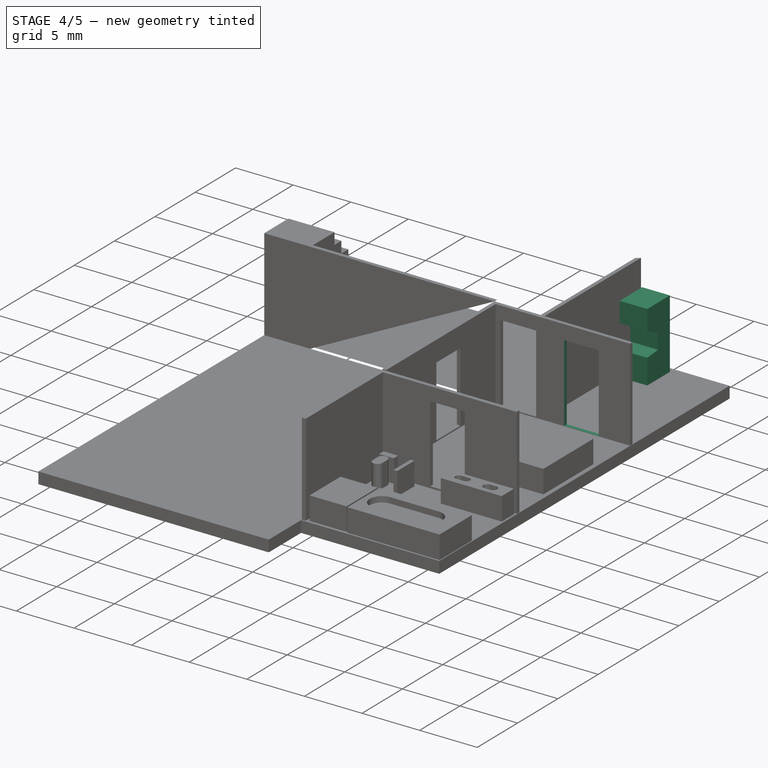
[diagram: stage 4 of 5 — iso view after this stage's code; geometry added in this stage tinted green]
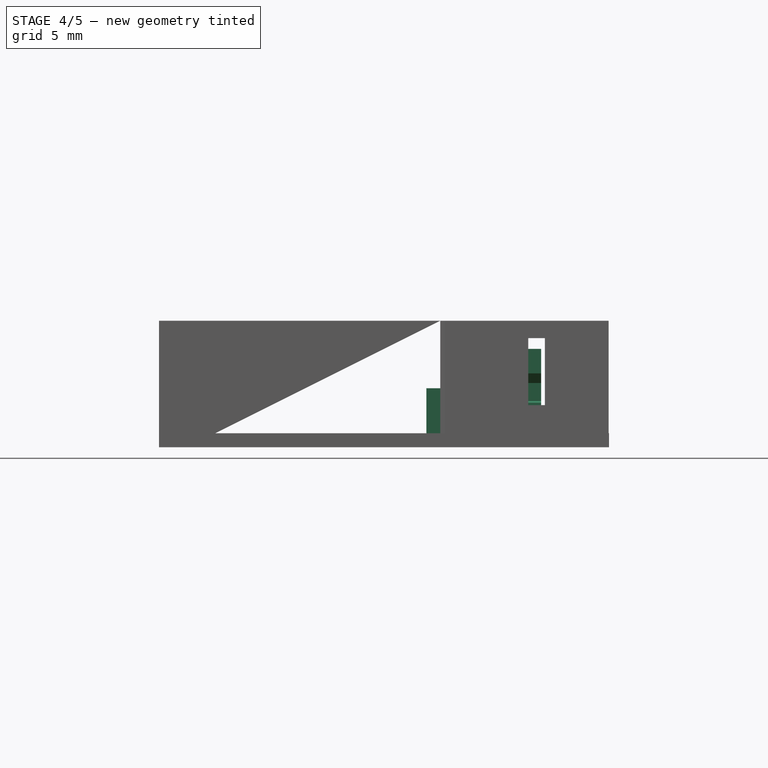
[diagram: stage 4 of 5 — front view after this stage's code; geometry added in this stage tinted green]
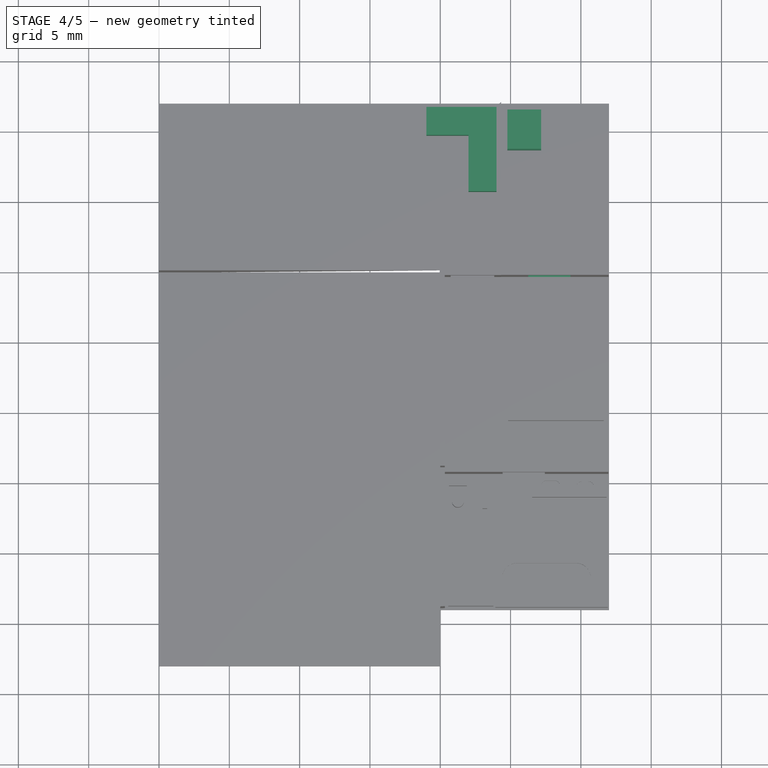
[diagram: stage 4 of 5 — top view after this stage's code; geometry added in this stage tinted green]
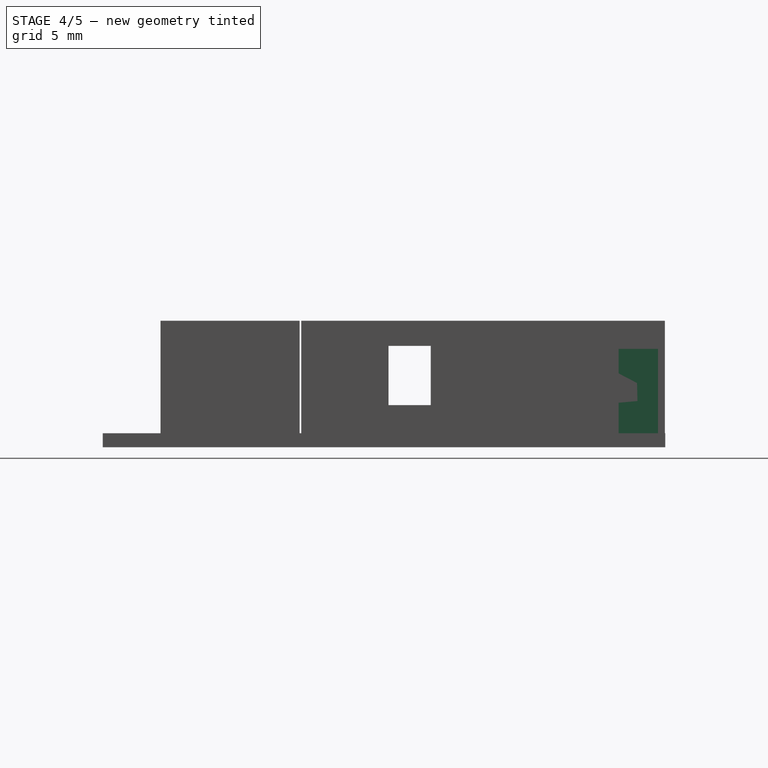
[diagram: stage 4 of 5 — right view after this stage's code; geometry added in this stage tinted green]
FEATURE [Sketcher::SketchObject] Sketch025
  FullyConstrained = false
  MapMode = 5
  Placement = pos=(0,0,1) rot=(0,0,1;0rad)
  Support = -> [Pad011]
  sketch-geometry (4):
    g0: LineSegment StartX=4.77247 StartY=11.4799 StartZ=0 EndX=7.17247 EndY=11.4799 EndZ=0
    g1: LineSegment StartX=7.17247 StartY=11.4799 StartZ=0 EndX=7.17247 EndY=8.67988 EndZ=0
    g2: LineSegment StartX=7.17247 StartY=8.67988 StartZ=0 EndX=4.77247 EndY=8.67988 EndZ=0
    g3: LineSegment StartX=4.77247 StartY=8.67988 StartZ=0 EndX=4.77247 EndY=11.4799 EndZ=0
  constraints (10):
    c: Coincident(g0,g1)
    c: Coincident(g1,g2)
    c: Coincident(g2,g3)
    c: Coincident(g3,g0)
    c: Horizontal(g0)
    c: Horizontal(g2)
    c: Vertical(g1)
    c: Vertical(g3)
    c: Distance(g0) = 2.4
    c: Distance(g3) = 2.8
FEATURE [PartDesign::Pad] Pad012
  BaseFeature = -> Pad011
  Direction = (1,1,1)
  Length = 6
  Length2 = 100
  Profile = -> Sketch025
  Type = 0
FEATURE [Sketcher::SketchObject] Sketch026
  FullyConstrained = false
  MapMode = 5
  Placement = pos=(7.17247,0,0) rot=(0.57735,0.57735,0.57735;2.0944rad)
  Support = -> [Pad012]
  sketch-geometry (4):
    g0: LineSegment StartX=8.22465 StartY=3.12752 StartZ=0 EndX=10.0228 EndY=3.28808 EndZ=0
    g1: LineSegment StartX=10.0228 StartY=3.28808 StartZ=0 EndX=9.99073 EndY=4.57249 EndZ=0
    g2: LineSegment StartX=9.99073 StartY=4.57249 StartZ=0 EndX=8.51365 EndY=5.34315 EndZ=0
    g3: LineSegment StartX=8.51365 StartY=5.34315 StartZ=0 EndX=8.22465 EndY=3.12752 EndZ=0
  constraints (4):
    c: Coincident(g0,g1)
    c: Coincident(g1,g2)
    c: Coincident(g2,g3)
    c: Coincident(g3,g0)
FEATURE [PartDesign::Pocket] Pocket004
  BaseFeature = -> Pad012
  Length = 2.5
  Length2 = 100
  Profile = -> Sketch026
  Type = 0
FEATURE [Sketcher::SketchObject] Sketch027
  FullyConstrained = true
  MapMode = 5
  Placement = pos=(0,-0.31886,0) rot=(1,0,0;1.5708rad)
  Support = -> [Pocket004]
FEATURE [Sketcher::SketchObject] Sketch028
  FullyConstrained = false
  MapMode = 5
  Placement = pos=(0,-0.31886,0) rot=(1,0,0;1.5708rad)
  Support = -> [Pocket004]
  sketch-geometry (4):
    g0: LineSegment StartX=6.25796 StartY=7.76106 StartZ=0 EndX=9.25796 EndY=7.76106 EndZ=0
    g1: LineSegment StartX=9.25796 StartY=7.76106 StartZ=0 EndX=9.25796 EndY=1.03086 EndZ=0
    g2: LineSegment StartX=9.25796 StartY=1.03086 StartZ=0 EndX=6.25796 EndY=1.03086 EndZ=0
    g3: LineSegment StartX=6.25796 StartY=1.03086 StartZ=0 EndX=6.25796 EndY=7.76106 EndZ=0
  constraints (9):
    c: Coincident(g0,g1)
    c: Coincident(g1,g2)
    c: Coincident(g2,g3)
    c: Coincident(g3,g0)
    c: Horizontal(g0)
    c: Horizontal(g2)
    c: Vertical(g1)
    c: Vertical(g3)
    c: Distance(g0) = 3
FEATURE [PartDesign::Pocket] Pocket005
  BaseFeature = -> Pocket004
  Length = 5
  Length2 = 100
  Profile = -> Sketch028
  Type = 0
FEATURE [Sketcher::SketchObject] Sketch029
  FullyConstrained = false
  MapMode = 5
  Placement = pos=(0,0,1) rot=(0,0,1;0rad)
  Support = -> [Pocket005]
  sketch-geometry (6):
    g0: LineSegment StartX=-0.991208 StartY=11.7154 StartZ=0 EndX=-0.991208 EndY=9.71541 EndZ=0
    g1: LineSegment StartX=-0.991208 StartY=9.71541 StartZ=0 EndX=2.00879 EndY=9.71541 EndZ=0
    g2: LineSegment StartX=2.00879 StartY=9.71541 StartZ=0 EndX=2.00879 EndY=5.71541 EndZ=0
    g3: LineSegment StartX=2.00879 StartY=5.71541 StartZ=0 EndX=4.00879 EndY=5.71541 EndZ=0
    g4: LineSegment StartX=4.00879 StartY=5.71541 StartZ=0 EndX=4.00879 EndY=11.7154 EndZ=0
    g5: LineSegment StartX=4.00879 StartY=11.7154 StartZ=0 EndX=-0.991208 EndY=11.7154 EndZ=0
  constraints (16):
    c: Vertical(g0)
    c: Coincident(g0,g1)
    c: Horizontal(g1)
    c: Coincident(g1,g2)
    c: Vertical(g2)
    c: Coincident(g2,g3)
    c: Coincident(g3,g4)
    c: Vertical(g4)
    c: Coincident(g4,g5)
    c: Coincident(g5,g0)
    c: Horizontal(g5)
    c: Distance(g0) = 2
    c: Distance(g3) = 2
    c: Horizontal(g3)
    c: Distance(g2) = 4
    c: Distance(g1) = 3
FEATURE [PartDesign::Pad] Pad013
  BaseFeature = -> Pocket005
  Direction = (1,1,1)
  Length = 3.2
  Length2 = 100
  Profile = -> Sketch029
  Type = 0
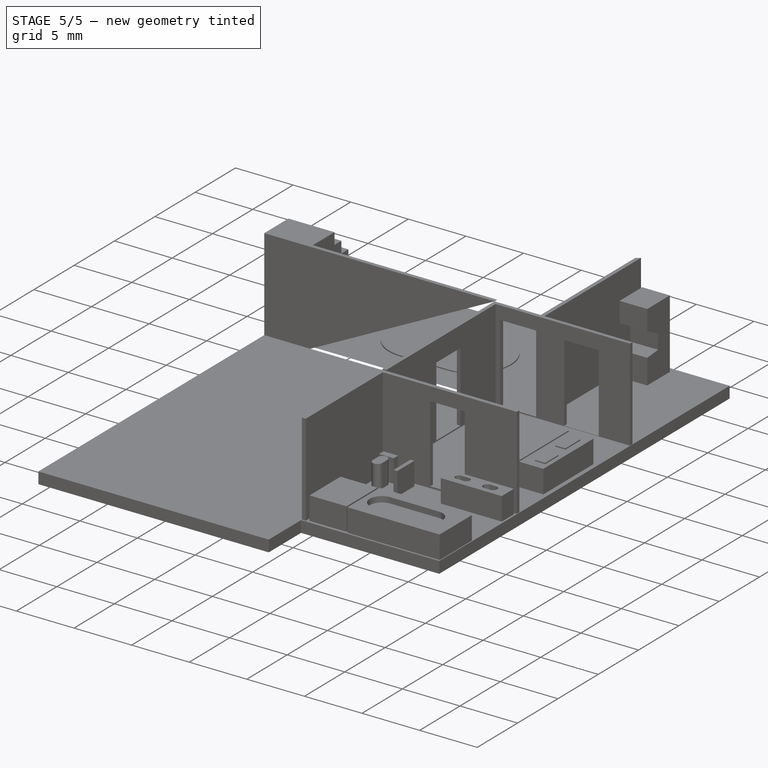
[diagram: stage 5 of 5 — iso view after this stage's code; geometry added in this stage tinted green]
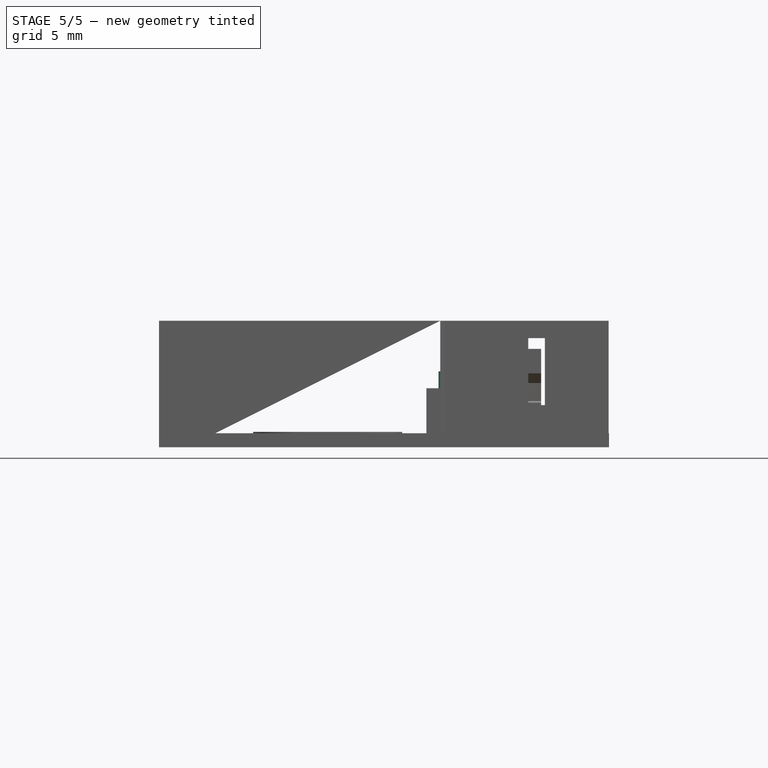
[diagram: stage 5 of 5 — front view after this stage's code; geometry added in this stage tinted green]
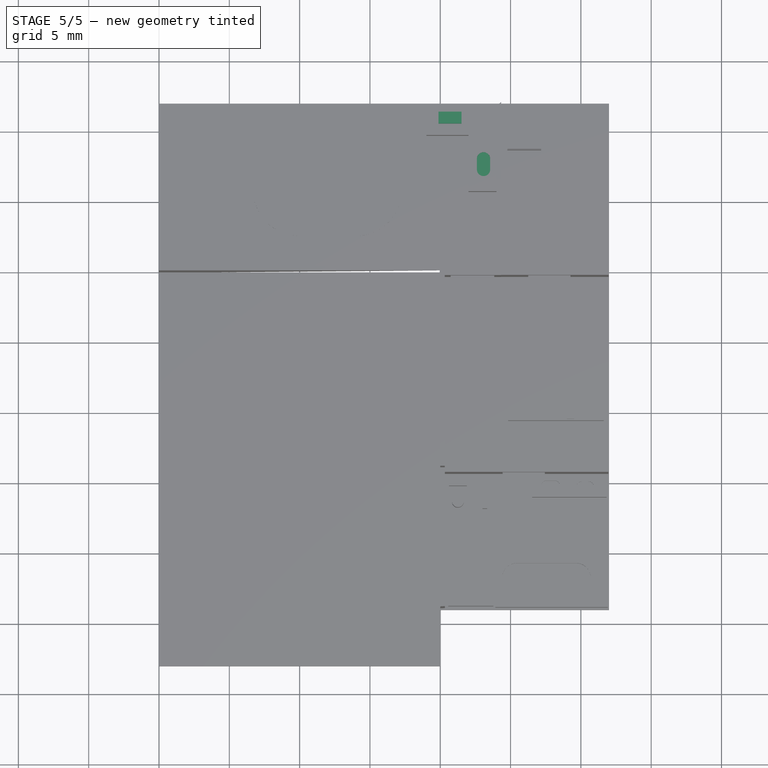
[diagram: stage 5 of 5 — top view after this stage's code; geometry added in this stage tinted green]
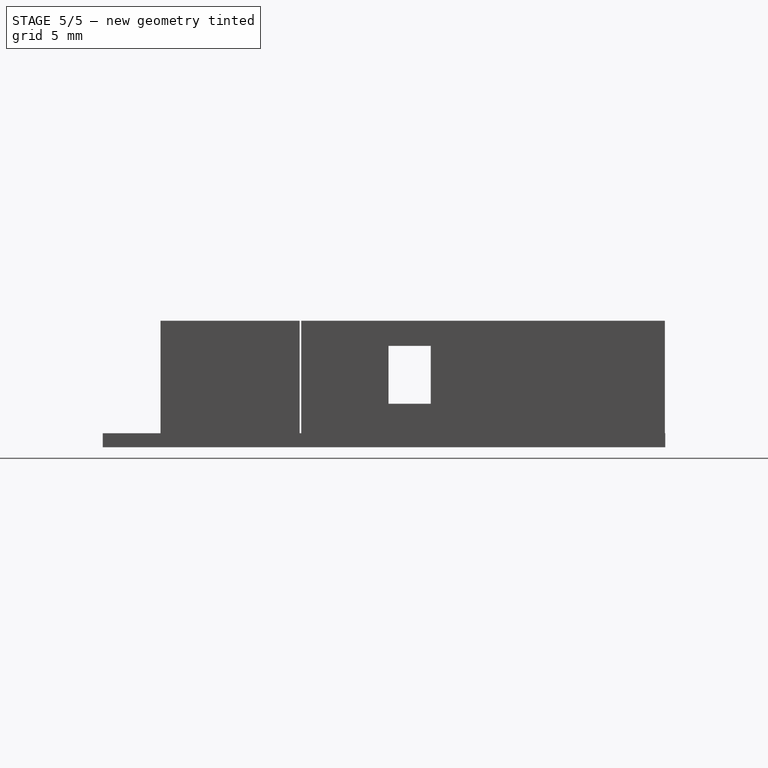
[diagram: stage 5 of 5 — right view after this stage's code; geometry added in this stage tinted green]
FEATURE [Sketcher::SketchObject] Sketch030
  FullyConstrained = false
  MapMode = 5
  Placement = pos=(0,0,4.2) rot=(0,0,1;0rad)
  Support = -> [Pad013]
  sketch-geometry (4):
    g0: ArcOfCircle CenterX=3.07721 CenterY=8.01575 CenterZ=0 NormalX=0 NormalY=0 NormalZ=1 AngleXU=0 Radius=0.473327 StartAngle=-9e-16 EndAngle=3.14159
    g1: ArcOfCircle CenterX=3.07721 CenterY=7.26724 CenterZ=0 NormalX=0 NormalY=0 NormalZ=1 AngleXU=0 Radius=0.473327 StartAngle=3.14159 EndAngle=6.28319
    g2: LineSegment StartX=2.60388 StartY=8.01575 StartZ=0 EndX=2.60388 EndY=7.26724 EndZ=0
    g3: LineSegment StartX=3.55053 StartY=8.01575 StartZ=0 EndX=3.55053 EndY=7.26724 EndZ=0
  constraints (6):
    c: Tangent(g0,g3) = 1.5708
    c: Tangent(g0,g2) = -1.5708
    c: Tangent(g2,g1) = -1.5708
    c: Tangent(g3,g1) = 1.5708
    c: Vertical(g2)
    c: Equal(g0,g1)
FEATURE [PartDesign::Pocket] Pocket006
  BaseFeature = -> Pad013
  Length = 0.5
  Length2 = 100
  Profile = -> Sketch030
  Type = 0
FEATURE [Sketcher::SketchObject] Sketch031
  FullyConstrained = false
  MapMode = 5
  Placement = pos=(0,0,4.2) rot=(0,0,1;0rad)
  Support = -> [Pocket006]
  sketch-geometry (4):
    g0: LineSegment StartX=1.50947 StartY=11.3554 StartZ=0 EndX=-0.12816 EndY=11.3554 EndZ=0
    g1: LineSegment StartX=-0.12816 StartY=11.3554 StartZ=0 EndX=-0.12816 EndY=10.5205 EndZ=0
    g2: LineSegment StartX=-0.12816 StartY=10.5205 StartZ=0 EndX=1.50947 EndY=10.5205 EndZ=0
    g3: LineSegment StartX=1.50947 StartY=10.5205 StartZ=0 EndX=1.50947 EndY=11.3554 EndZ=0
  constraints (8):
    c: Coincident(g0,g1)
    c: Coincident(g1,g2)
    c: Coincident(g2,g3)
    c: Coincident(g3,g0)
    c: Horizontal(g0)
    c: Horizontal(g2)
    c: Vertical(g1)
    c: Vertical(g3)
FEATURE [PartDesign::Pad] Pad014
  BaseFeature = -> Pocket006
  Direction = (1,1,1)
  Length = 1.2
  Length2 = 100
  Profile = -> Sketch031
  Type = 0
FEATURE [Sketcher::SketchObject] Sketch032
  FullyConstrained = false
  MapMode = 5
  Placement = pos=(0,0,1) rot=(0,0,1;0rad)
  Support = -> [Pad014]
  sketch-geometry (4):
    g0: ArcOfCircle CenterX=-9.99704 CenterY=5.90512 CenterZ=0 NormalX=0 NormalY=0 NormalZ=1 AngleXU=0 Radius=3.31217 StartAngle=1.5708 EndAngle=4.71239
    g1: ArcOfCircle CenterX=-6.02109 CenterY=5.90512 CenterZ=0 NormalX=0 NormalY=0 NormalZ=1 AngleXU=0 Radius=3.31217 StartAngle=4.71239 EndAngle=7.85398
    g2: LineSegment StartX=-9.99704 StartY=2.59295 StartZ=0 EndX=-6.02109 EndY=2.59295 EndZ=0
    g3: LineSegment StartX=-9.99704 StartY=9.21729 StartZ=0 EndX=-6.02108 EndY=9.21729 EndZ=0
  constraints (6):
    c: Tangent(g0,g3) = 1.5708
    c: Tangent(g0,g2) = -1.5708
    c: Tangent(g2,g1) = -1.5708
    c: Tangent(g3,g1) = 1.5708
    c: Horizontal(g2)
    c: Equal(g0,g1)
FEATURE [PartDesign::Pad] Pad015
  BaseFeature = -> Pad014
  Direction = (1,1,1)
  Length = 0.1
  Length2 = 100
  Profile = -> Sketch032
  Type = 0
FEATURE [Sketcher::SketchObject] Sketch033
  FullyConstrained = false
  MapMode = 5
  Placement = pos=(0,0,3) rot=(0,0,1;0rad)
  Support = -> [Pad015]
  sketch-geometry (12):
    g0: LineSegment StartX=10.187 StartY=-5.15227 StartZ=0 EndX=11.0539 EndY=-5.15227 EndZ=0
    g1: LineSegment StartX=11.0539 StartY=-5.15227 StartZ=0 EndX=11.0539 EndY=-7.01468 EndZ=0
    g2: LineSegment StartX=11.0539 StartY=-7.01468 StartZ=0 EndX=10.187 EndY=-7.01468 EndZ=0
    g3: LineSegment StartX=10.187 StartY=-7.01468 StartZ=0 EndX=10.187 EndY=-5.15227 EndZ=0
    g4: LineSegment StartX=10.4117 StartY=-8.20277 StartZ=0 EndX=11.2787 EndY=-8.20277 EndZ=0
    g5: LineSegment StartX=11.2787 StartY=-8.20277 StartZ=0 EndX=11.2787 EndY=-9.84041 EndZ=0
    g6: LineSegment StartX=11.2787 StartY=-9.84041 StartZ=0 EndX=10.4117 EndY=-9.84041 EndZ=0
    g7: LineSegment StartX=10.4117 StartY=-9.84041 StartZ=0 EndX=10.4117 EndY=-8.20277 EndZ=0
    g8: LineSegment StartX=9.03097 StartY=-4.41373 StartZ=0 EndX=9.51263 EndY=-4.41373 EndZ=0
    g9: LineSegment StartX=9.51263 StartY=-4.41373 StartZ=0 EndX=9.51263 EndY=-10.4505 EndZ=0
    g10: LineSegment StartX=9.51263 StartY=-10.4505 StartZ=0 EndX=9.03097 EndY=-10.4505 EndZ=0
    g11: LineSegment StartX=9.03097 StartY=-10.4505 StartZ=0 EndX=9.03097 EndY=-4.41373 EndZ=0
  constraints (24):
    c: Coincident(g0,g1)
    c: Coincident(g1,g2)
    c: Coincident(g2,g3)
    c: Coincident(g3,g0)
    c: Horizontal(g0)
    c: Horizontal(g2)
    c: Vertical(g1)
    c: Vertical(g3)
    c: Coincident(g4,g5)
    c: Coincident(g5,g6)
    c: Coincident(g6,g7)
    c: Coincident(g7,g4)
    c: Horizontal(g4)
    c: Horizontal(g6)
    c: Vertical(g5)
    c: Vertical(g7)
    c: Coincident(g8,g9)
    c: Coincident(g9,g10)
    c: Coincident(g10,g11)
    c: Coincident(g11,g8)
    c: Horizontal(g8)
    c: Horizontal(g10)
    c: Vertical(g9)
    c: Vertical(g11)
FEATURE [PartDesign::Pad] Pad016
  BaseFeature = -> Pad015
  Direction = (1,1,1)
  Length = 0.1
  Length2 = 100
  Profile = -> Sketch033
  Type = 0
FEATURE [PartDesign::Body] Body
  Group = -> [Sketch,Pad,Sketch004,Sketch005,Sketch007,Pad004,Sketch010,Sketch012,Sketch013,Pad005,Sketch014,Pad006,Sketch015,Pad007,Sketch016,Pocket,Sketch017,Pocket001,Sketch018,Pad008,Sketch019,Sketch020,Pocket002,Sketch021,Pad009,Sketch022,Sketch023,Pad010,Pocket003,Sketch024,Pad011,Sketch025,Pad012,Sketch026,Pocket004,Sketch027,Sketch028,Pocket005,Sketch029,Pad013,Sketch030,Pocket006,Sketch031,Pad014,+4 more]
  Origin = -> Origin
  Tip = -> Pad016
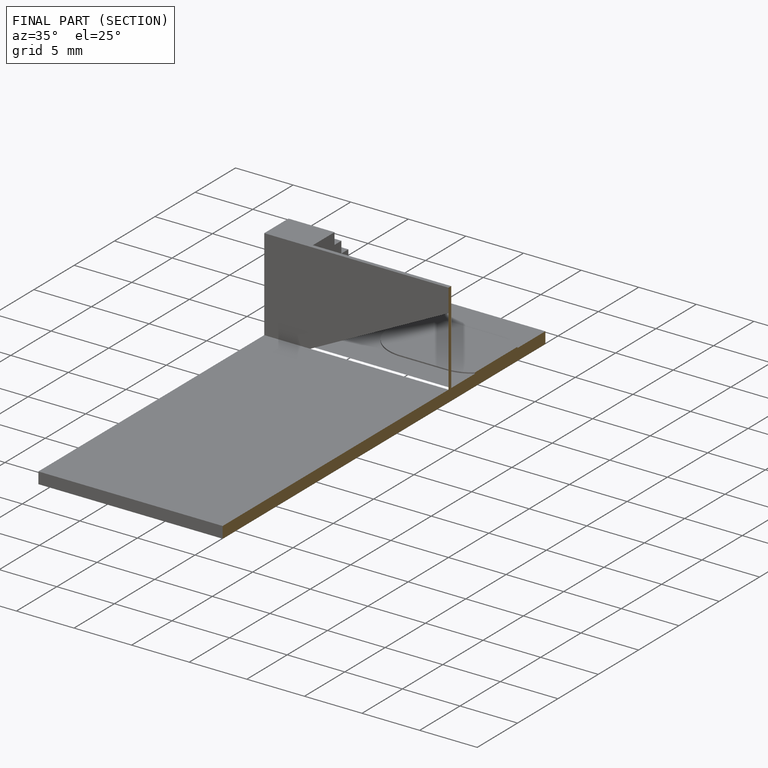
[diagram: finished part — half-section view (interior)]
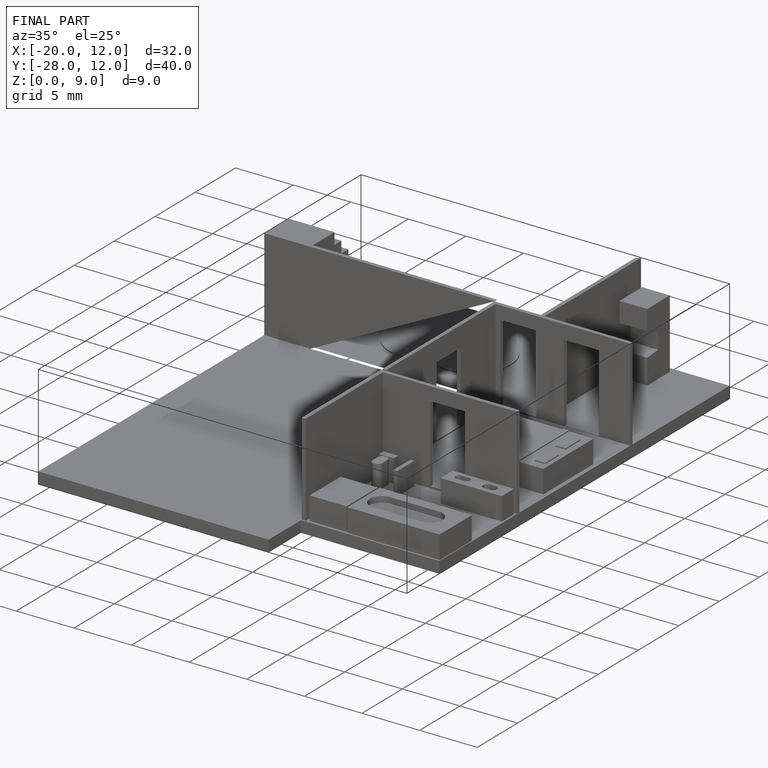
[diagram: finished part — iso view with bounding-box wireframe]
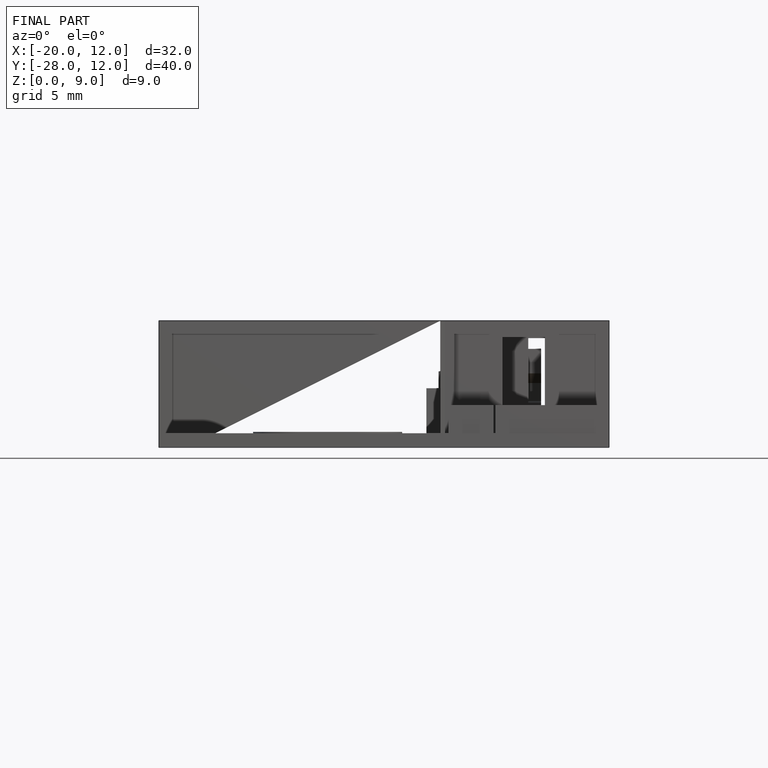
[diagram: finished part — front view with bounding-box wireframe]
